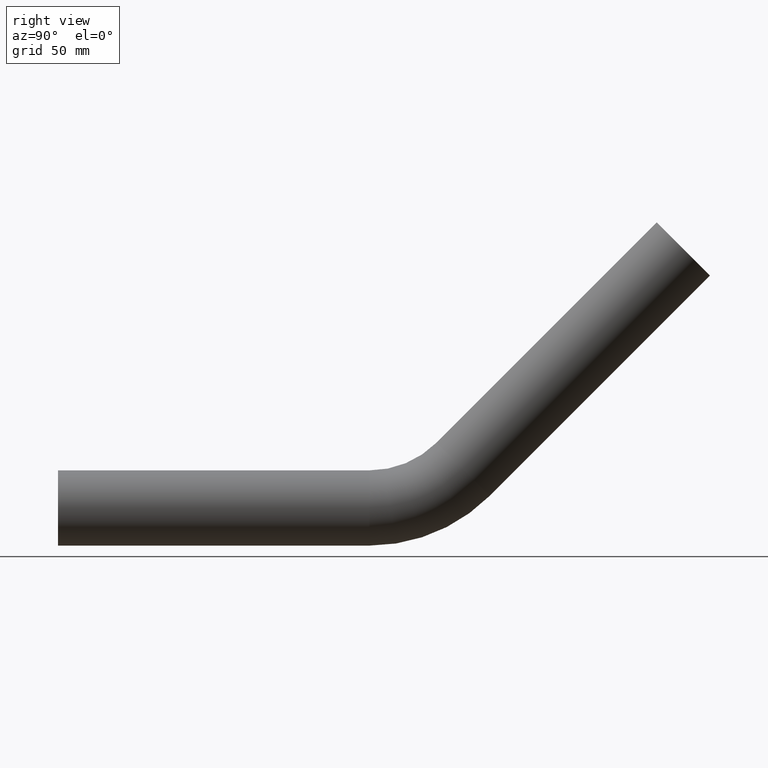
[diagram: clean part render]
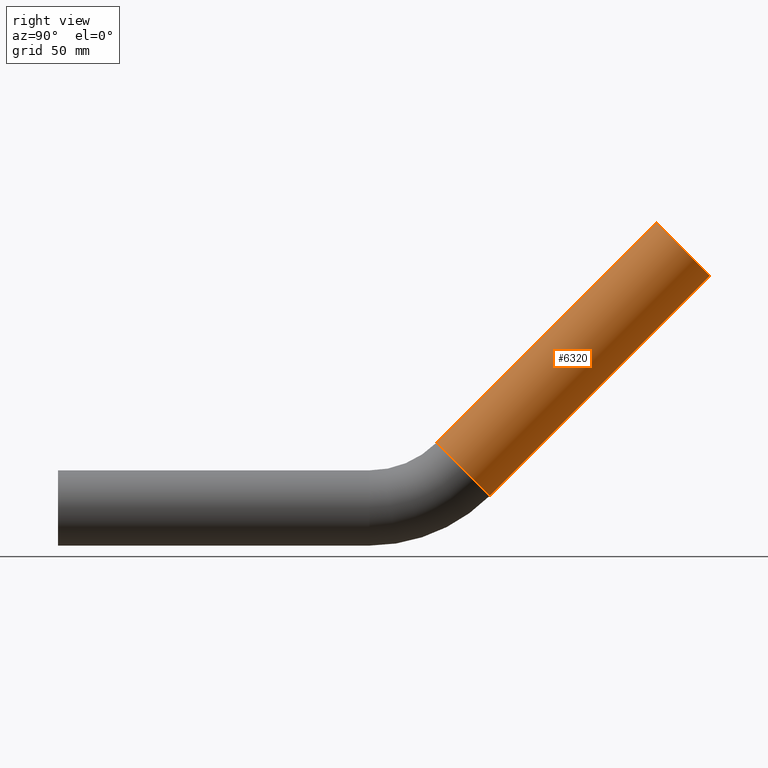
[diagram: same view with one face highlighted and labeled with its STEP entity id]
A machine part, right view. The second image highlights one B-rep face of the part: STEP entity #6320.
In plain terms, the highlighted cylindrical surface (partial cylindrical patch) has radius 24.15 mm, axis along (0, 0.7071, 0.7071).
Its self-contained STEP definition (entity closure, byte-faithful):
#31 = CARTESIAN_POINT ( 'NONE',  ( 0.0000000000000000000, 401.5254326381658500, 166.3172798364533100 ) ) ;
#242 = EDGE_LOOP ( 'NONE', ( #3627, #9364, #2986, #7534 ) ) ;
#323 = AXIS2_PLACEMENT_3D ( 'NONE', #8595, #591, #8633 ) ;
#591 = DIRECTION ( 'NONE',  ( 0.0000000000000000000, 0.7071067811865462400, 0.7071067811865487900 ) ) ;
#736 = CYLINDRICAL_SURFACE ( 'NONE', #323, 24.15000000000000600 ) ;
#738 = CARTESIAN_POINT ( 'NONE',  ( 0.0000000000000000000, 260.1040764008566300, 24.89592359914358300 ) ) ;
#751 = LINE ( 'NONE', #4173, #3651 ) ;
#801 = DIRECTION ( 'NONE',  ( 0.0000000000000000000, 0.7071067811865460200, 0.7071067811865490200 ) ) ;
#814 = DIRECTION ( 'NONE',  ( 0.0000000000000000000, 0.7071067811865460200, 0.7071067811865490200 ) ) ;
#863 = VERTEX_POINT ( 'NONE', #1984 ) ;
#1937 = CIRCLE ( 'NONE', #6016, 24.15000000000000200 ) ;
#1964 = LINE ( 'NONE', #11293, #9077 ) ;
#1984 = CARTESIAN_POINT ( 'NONE',  ( 2.957522019940857900E-015, 277.1807051665117600, 7.819294833488508600 ) ) ;
#2585 = VERTEX_POINT ( 'NONE', #4538 ) ;
#2986 = ORIENTED_EDGE ( 'NONE', *, *, #7752, .F. ) ;
#3309 = CARTESIAN_POINT ( 'NONE',  ( 0.0000000000000000000, 243.0274476352014700, 41.97255236479867300 ) ) ;
#3627 = ORIENTED_EDGE ( 'NONE', *, *, #11164, .T. ) ;
#3651 = VECTOR ( 'NONE', #5990, 999.9999999999998900 ) ;
#4173 = CARTESIAN_POINT ( 'NONE',  ( 0.0000000000000000000, 243.0274476352014700, 41.97255236479867300 ) ) ;
#4538 = CARTESIAN_POINT ( 'NONE',  ( 0.0000000000000000000, 384.4488038725106700, 183.3939086021084100 ) ) ;
#5320 = EDGE_CURVE ( 'NONE', #5762, #2585, #751, .T. ) ;
#5762 = VERTEX_POINT ( 'NONE', #3309 ) ;
#5990 = DIRECTION ( 'NONE',  ( 0.0000000000000000000, 0.7071067811865462400, 0.7071067811865489100 ) ) ;
#6016 = AXIS2_PLACEMENT_3D ( 'NONE', #738, #814, #10489 ) ;
#6320 = ADVANCED_FACE ( 'NONE', ( #9100 ), #736, .T. ) ;
#7233 = AXIS2_PLACEMENT_3D ( 'NONE', #31, #801, #7906 ) ;
#7534 = ORIENTED_EDGE ( 'NONE', *, *, #5320, .F. ) ;
#7752 = EDGE_CURVE ( 'NONE', #2585, #8773, #9168, .T. ) ;
#7770 = DIRECTION ( 'NONE',  ( 0.0000000000000000000, 0.7071067811865462400, 0.7071067811865489100 ) ) ;
#7906 = DIRECTION ( 'NONE',  ( 0.0000000000000000000, -0.7071067811865486800, 0.7071067811865462400 ) ) ;
#8595 = CARTESIAN_POINT ( 'NONE',  ( 0.0000000000000000000, 260.1040764008566300, 24.89592359914358300 ) ) ;
#8633 = DIRECTION ( 'NONE',  ( 0.0000000000000000000, -0.7071067811865490200, 0.7071067811865460200 ) ) ;
#8773 = VERTEX_POINT ( 'NONE', #9308 ) ;
#9077 = VECTOR ( 'NONE', #7770, 999.9999999999998900 ) ;
#9100 = FACE_OUTER_BOUND ( 'NONE', #242, .T. ) ;
#9167 = EDGE_CURVE ( 'NONE', #863, #8773, #1964, .T. ) ;
#9168 = CIRCLE ( 'NONE', #7233, 24.14999999999997700 ) ;
#9308 = CARTESIAN_POINT ( 'NONE',  ( 2.957522019940857900E-015, 418.6020614038209800, 149.2406510707982400 ) ) ;
#9364 = ORIENTED_EDGE ( 'NONE', *, *, #9167, .T. ) ;
#10489 = DIRECTION ( 'NONE',  ( 0.0000000000000000000, -0.7071067811865491300, 0.7071067811865458000 ) ) ;
#11164 = EDGE_CURVE ( 'NONE', #5762, #863, #1937, .T. ) ;
#11293 = CARTESIAN_POINT ( 'NONE',  ( 2.957522019940857900E-015, 277.1807051665117600, 7.819294833488490900 ) ) ;